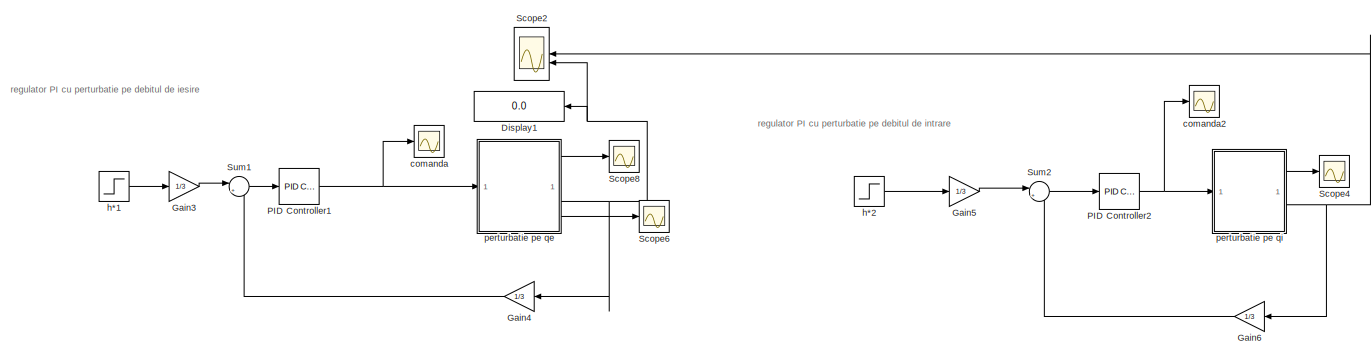
[diagram: root canvas - part 1/2, right side, full height]
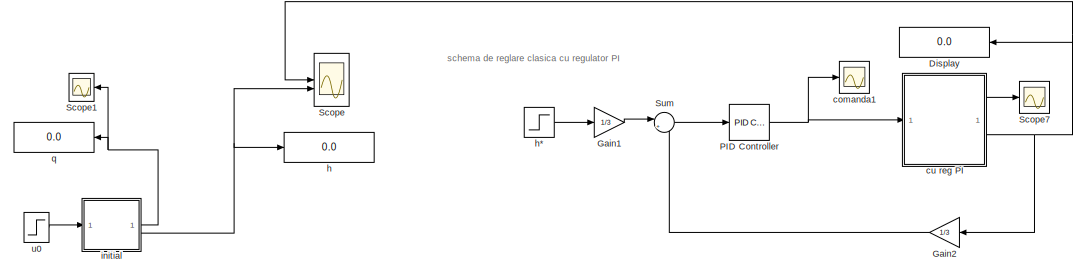
[diagram: root canvas - part 2/2, middle left region]
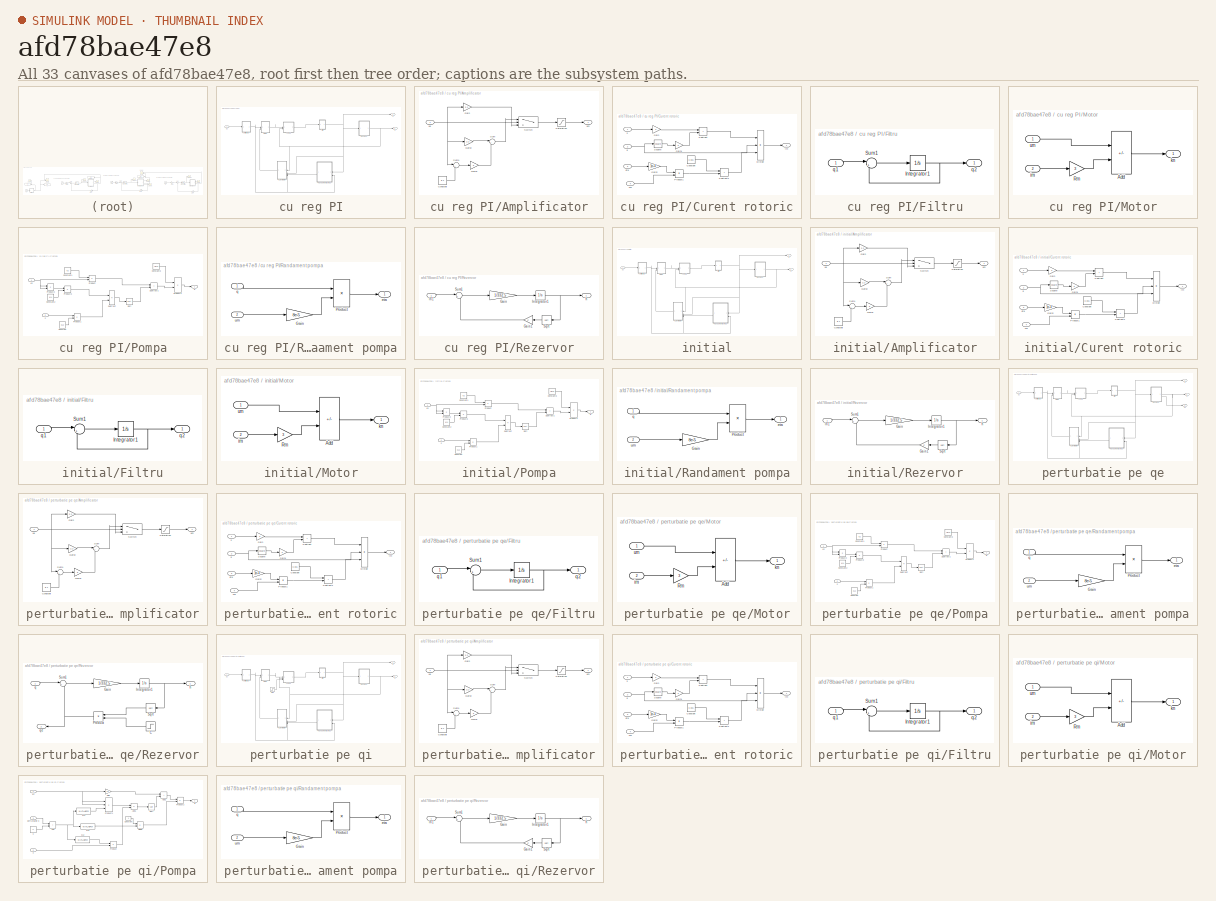
[diagram: thumbnail index - all 33 canvases of the model, root first then tree order]
MODEL slx_afd78bae47e8
KIND model
CONFIG AbsTol = auto
CONFIG EnableMultiTasking = off
CONFIG FixedStep = 0.01
CONFIG MaxStep = auto
CONFIG MinStep = auto
CONFIG RelTol = 1e-3
CONFIG SampleTimeConstraint = Unconstrained
CONFIG SolverName = FixedStepAuto
CONFIG StartTime = 0.0
CONFIG StopTime = 2000
BLOCK [Display] Display
  Decimation = 1
  NameLocation = top
BLOCK [Display] Display1
  Decimation = 1
  NameLocation = top
BLOCK [Gain] Gain1
  Gain = 1/3
BLOCK [Gain] Gain2
  Gain = 1/3
  NameLocation = top
BLOCK [Gain] Gain3
  Gain = 1/3
BLOCK [Gain] Gain4
  Gain = 1/3
  NameLocation = top
BLOCK [Gain] Gain5
  Gain = 1/3
BLOCK [Gain] Gain6
  Gain = 1/3
  NameLocation = top
BLOCK [Reference] PID Controller  REF=slpidlib/PID Controller
  LibrarySourceBlock = simulink/Continuous/PID Controller
  SourceBlock = slpidlib/PID Controller
  SourceType = PID 1dof
BLOCK [Reference] PID Controller1  REF=slpidlib/PID Controller
  LibrarySourceBlock = simulink/Continuous/PID Controller
  SourceBlock = slpidlib/PID Controller
  SourceType = PID 1dof
BLOCK [Reference] PID Controller2  REF=slpidlib/PID Controller
  LibrarySourceBlock = simulink/Continuous/PID Controller
  SourceBlock = slpidlib/PID Controller
  SourceType = PID 1dof
BLOCK [Scope] Scope
  Floating = off
  NumInputPorts = 2
  ScopeSpecificationString = Simulink.scopes.TimeScopeBlockCfg('CurrentConfiguration', extmgr.ConfigurationSet(extmgr.Configuration('Core','General UI',true),extmgr.Configuration('Core','Source UI',true),extmgr.Configuration('Sources','WiredSimulink',true,'DataLoggingVariableName','ScopeData1'),extmgr.Configuration('Visuals','Time Domain',true,'SerializedDisplays',{struct('MinYLimReal','13.48441','MaxYLimReal','18.34027','YLa...<+1519ch>
BLOCK [Scope] Scope1
  Floating = off
  NameLocation = top
  NumInputPorts = 1
  ScopeSpecificationString = Simulink.scopes.TimeScopeBlockCfg('CurrentConfiguration', extmgr.ConfigurationSet(extmgr.Configuration('Core','General UI',true),extmgr.Configuration('Core','Source UI',true),extmgr.Configuration('Sources','WiredSimulink',true,'DataLoggingVariableName','ScopeData2'),extmgr.Configuration('Visuals','Time Domain',true,'SerializedDisplays',{struct('MinYLimReal','19.95198','MaxYLimReal','30.13222','YLa...<+1734ch>
BLOCK [Scope] Scope2
  Floating = off
  NameLocation = top
  NumInputPorts = 2
  ScopeSpecificationString = Simulink.scopes.TimeScopeBlockCfg('CurrentConfiguration', extmgr.ConfigurationSet(extmgr.Configuration('Core','General UI',true),extmgr.Configuration('Core','Source UI',true),extmgr.Configuration('Sources','WiredSimulink',true,'DataLoggingVariableName','ScopeData9'),extmgr.Configuration('Visuals','Time Domain',true,'SerializedDisplays',{struct('MinYLimReal','13.48278','MaxYLimReal','18.35495','YLa...<+1797ch>
BLOCK [Scope] Scope4
  Floating = off
  NumInputPorts = 1
  ScopeSpecificationString = Simulink.scopes.TimeScopeBlockCfg('CurrentConfiguration', extmgr.ConfigurationSet(extmgr.Configuration('Core','General UI',true),extmgr.Configuration('Core','Source UI',true),extmgr.Configuration('Sources','WiredSimulink',true,'DataLoggingVariableName','ScopeData3'),extmgr.Configuration('Visuals','Time Domain',true),extmgr.Configuration('Tools','Plot Navigation',true),extmgr.Configuration('Tools',...<+40ch>
BLOCK [Scope] Scope6
  Floating = off
  NumInputPorts = 1
  ScopeSpecificationString = Simulink.scopes.TimeScopeBlockCfg('CurrentConfiguration', extmgr.ConfigurationSet(extmgr.Configuration('Core','General UI',true),extmgr.Configuration('Core','Source UI',true),extmgr.Configuration('Sources','WiredSimulink',true,'DataLoggingVariableName','ScopeData4'),extmgr.Configuration('Visuals','Time Domain',true,'SerializedDisplays',{struct('MinYLimReal','18.79179','MaxYLimReal','40.1821','YLab...<+1380ch>
BLOCK [Scope] Scope7
  Floating = off
  NumInputPorts = 1
  ScopeSpecificationString = Simulink.scopes.TimeScopeBlockCfg('CurrentConfiguration', extmgr.ConfigurationSet(extmgr.Configuration('Core','General UI',true),extmgr.Configuration('Core','Source UI',true),extmgr.Configuration('Sources','WiredSimulink',true,'DataLoggingVariableName','ScopeData5'),extmgr.Configuration('Visuals','Time Domain',true,'SerializedDisplays',{struct('MinYLimReal','-3.05506','MaxYLimReal','62.55719','YLa...<+1374ch>
BLOCK [Scope] Scope8
  Floating = off
  NumInputPorts = 1
  ScopeSpecificationString = Simulink.scopes.TimeScopeBlockCfg('CurrentConfiguration', extmgr.ConfigurationSet(extmgr.Configuration('Core','General UI',true),extmgr.Configuration('Core','Source UI',true),extmgr.Configuration('Sources','WiredSimulink',true,'DataLoggingVariableName','ScopeData6'),extmgr.Configuration('Visuals','Time Domain',true,'SerializedDisplays',{struct('MinYLimReal','17.57679','MaxYLimReal','51.50893','YLa...<+1698ch>
BLOCK [Sum] Sum
  Inputs = |+-
BLOCK [Sum] Sum1
  Inputs = |+-
BLOCK [Sum] Sum2
  Inputs = |+-
BLOCK [Scope] comanda
  Floating = off
  NumInputPorts = 1
  ScopeSpecificationString = Simulink.scopes.TimeScopeBlockCfg('CurrentConfiguration', extmgr.ConfigurationSet(extmgr.Configuration('Core','General UI',true),extmgr.Configuration('Core','Source UI',true),extmgr.Configuration('Sources','WiredSimulink',true,'DataLoggingVariableName','ScopeData7'),extmgr.Configuration('Visuals','Time Domain',true,'SerializedDisplays',{struct('MinYLimReal','4.71228','MaxYLimReal','6.58382','YLabe...<+1371ch>
BLOCK [Scope] comanda1
  Floating = off
  NumInputPorts = 1
  ScopeSpecificationString = Simulink.scopes.TimeScopeBlockCfg('CurrentConfiguration', extmgr.ConfigurationSet(extmgr.Configuration('Core','General UI',true),extmgr.Configuration('Core','Source UI',true),extmgr.Configuration('Sources','WiredSimulink',true,'DataLoggingVariableName','ScopeData8'),extmgr.Configuration('Visuals','Time Domain',true,'SerializedDisplays',{struct('MinYLimReal','4.07509','MaxYLimReal','7.51654','YLabe...<+1411ch>
BLOCK [Scope] comanda2
  Floating = off
  NumInputPorts = 1
  ScopeSpecificationString = Simulink.scopes.TimeScopeBlockCfg('CurrentConfiguration', extmgr.ConfigurationSet(extmgr.Configuration('Core','General UI',true),extmgr.Configuration('Core','Source UI',true),extmgr.Configuration('Sources','WiredSimulink',true),extmgr.Configuration('Visuals','Time Domain',true),extmgr.Configuration('Tools','Plot Navigation',true),extmgr.Configuration('Tools','Measurements',true)),'Version','2022b'...<+1ch>
BLOCK [SubSystem] cu reg PI
BLOCK [SubSystem] cu reg PI/Amplificator
BLOCK [Constant] cu reg PI/Amplificator/Constant
  Value = 8.1
BLOCK [Gain] cu reg PI/Amplificator/Gain
  Gain = 2.2
BLOCK [Gain] cu reg PI/Amplificator/Gain1
  Gain = 5
BLOCK [Gain] cu reg PI/Amplificator/Gain2
  Gain = 2.2
BLOCK [Saturate] cu reg PI/Amplificator/Saturation
  LowerLimit = 0
  UpperLimit = 22
BLOCK [Sum] cu reg PI/Amplificator/Sum
  Inputs = |++
BLOCK [Sum] cu reg PI/Amplificator/Sum1
  Inputs = |+-
BLOCK [Switch] cu reg PI/Amplificator/Switch
  Criteria = u2 > Threshold
  InputSameDT = off
  SaturateOnIntegerOverflow = off
  Threshold = 8.1
BLOCK [Inport] cu reg PI/Amplificator/ua
BLOCK [Outport] cu reg PI/Amplificator/um
BLOCK [SubSystem] cu reg PI/Curent rotoric
  NameLocation = top
BLOCK [Constant] cu reg PI/Curent rotoric/Constant
  Value = 0.001
BLOCK [Product] cu reg PI/Curent rotoric/Divide
  Inputs = **/
BLOCK [Gain] cu reg PI/Curent rotoric/Gain
  Gain = 2
BLOCK [Gain] cu reg PI/Curent rotoric/Gain1
  Gain = k
BLOCK [Gain] cu reg PI/Curent rotoric/Gain2
  Gain = 1e+4
BLOCK [Product] cu reg PI/Curent rotoric/Product1
BLOCK [Math] cu reg PI/Curent rotoric/Square
  Operator = square
BLOCK [Sum] cu reg PI/Curent rotoric/Subtract
  IconShape = rectangular
BLOCK [Sum] cu reg PI/Curent rotoric/Subtract1
  IconShape = rectangular
BLOCK [Inport] cu reg PI/Curent rotoric/eta
  Port = 3
BLOCK [Inport] cu reg PI/Curent rotoric/h
BLOCK [Outport] cu reg PI/Curent rotoric/im
BLOCK [Inport] cu reg PI/Curent rotoric/q
  Port = 2
BLOCK [Inport] cu reg PI/Curent rotoric/um
  Port = 4
BLOCK [SubSystem] cu reg PI/Filtru
BLOCK [Integrator] cu reg PI/Filtru/Integrator1
  InitialCondition = q0
BLOCK [Sum] cu reg PI/Filtru/Sum1
  Inputs = |+-
BLOCK [Inport] cu reg PI/Filtru/q1
BLOCK [Outport] cu reg PI/Filtru/q2
BLOCK [SubSystem] cu reg PI/Motor
BLOCK [Sum] cu reg PI/Motor/Add
  IconShape = rectangular
  Inputs = +-
BLOCK [Gain] cu reg PI/Motor/Rm
  Gain = 3
BLOCK [Inport] cu reg PI/Motor/im
  Port = 2
BLOCK [Outport] cu reg PI/Motor/kn
BLOCK [Inport] cu reg PI/Motor/um
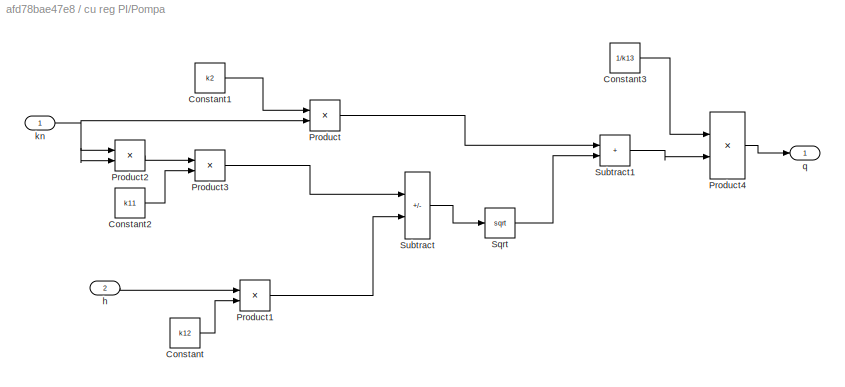
BLOCK [SubSystem] cu reg PI/Pompa
BLOCK [Constant] cu reg PI/Pompa/Constant
  Value = k12
BLOCK [Constant] cu reg PI/Pompa/Constant1
  Value = k2
BLOCK [Constant] cu reg PI/Pompa/Constant2
  Value = k11
BLOCK [Constant] cu reg PI/Pompa/Constant3
  Value = 1/k13
BLOCK [Product] cu reg PI/Pompa/Product
BLOCK [Product] cu reg PI/Pompa/Product1
BLOCK [Product] cu reg PI/Pompa/Product2
BLOCK [Product] cu reg PI/Pompa/Product3
BLOCK [Product] cu reg PI/Pompa/Product4
BLOCK [Sqrt] cu reg PI/Pompa/Sqrt
BLOCK [Sum] cu reg PI/Pompa/Subtract
  IconShape = rectangular
  Inputs = +-
BLOCK [Sum] cu reg PI/Pompa/Subtract1
  IconShape = rectangular
BLOCK [Inport] cu reg PI/Pompa/h
  Port = 2
BLOCK [Inport] cu reg PI/Pompa/kn
BLOCK [Outport] cu reg PI/Pompa/q
BLOCK [SubSystem] cu reg PI/Randament pompa
  NameLocation = top
BLOCK [Gain] cu reg PI/Randament pompa/Gain
  Gain = 8e-5
BLOCK [Product] cu reg PI/Randament pompa/Product
BLOCK [Outport] cu reg PI/Randament pompa/eta
BLOCK [Inport] cu reg PI/Randament pompa/q
BLOCK [Inport] cu reg PI/Randament pompa/um
  Port = 2
BLOCK [SubSystem] cu reg PI/Rezervor
BLOCK [Gain] cu reg PI/Rezervor/Gain
  Gain = 1/332.5
BLOCK [Gain] cu reg PI/Rezervor/Gain1
  Gain = C
  NameLocation = top
BLOCK [Integrator] cu reg PI/Rezervor/Integrator1
  InitialCondition = h0
BLOCK [Sqrt] cu reg PI/Rezervor/Sqrt
  NameLocation = top
BLOCK [Sum] cu reg PI/Rezervor/Sum1
  Inputs = |+-
BLOCK [Outport] cu reg PI/Rezervor/h
BLOCK [Inport] cu reg PI/Rezervor/ln1
BLOCK [Outport] cu reg PI/h
  Port = 2
BLOCK [Outport] cu reg PI/q
BLOCK [Inport] cu reg PI/uc
BLOCK [Display] h
  Decimation = 1
BLOCK [Step] h*
  After = h1
  Before = h0
  SampleTime = 0
  Time = 0
BLOCK [Step] h*1
  After = h1
  Before = h0
  SampleTime = 0
  Time = 0
BLOCK [Step] h*2
  After = h1
  Before = h0
  SampleTime = 0
  Time = 0
BLOCK [SubSystem] initial
BLOCK [SubSystem] initial/Amplificator
BLOCK [Constant] initial/Amplificator/Constant
  Value = 8.1
BLOCK [Gain] initial/Amplificator/Gain
  Gain = 2.2
BLOCK [Gain] initial/Amplificator/Gain1
  Gain = 5
BLOCK [Gain] initial/Amplificator/Gain2
  Gain = 2.2
BLOCK [Saturate] initial/Amplificator/Saturation
  LowerLimit = 0
  UpperLimit = 22
BLOCK [Sum] initial/Amplificator/Sum
  Inputs = |++
BLOCK [Sum] initial/Amplificator/Sum1
  Inputs = |+-
BLOCK [Switch] initial/Amplificator/Switch
  Criteria = u2 > Threshold
  InputSameDT = off
  SaturateOnIntegerOverflow = off
  Threshold = 8.1
BLOCK [Inport] initial/Amplificator/ua
BLOCK [Outport] initial/Amplificator/um
BLOCK [SubSystem] initial/Curent rotoric
  NameLocation = top
BLOCK [Constant] initial/Curent rotoric/Constant
  Value = 0.001
BLOCK [Product] initial/Curent rotoric/Divide
  Inputs = **/
BLOCK [Gain] initial/Curent rotoric/Gain
  Gain = 2
BLOCK [Gain] initial/Curent rotoric/Gain1
  Gain = k
BLOCK [Gain] initial/Curent rotoric/Gain2
  Gain = 1e+4
BLOCK [Product] initial/Curent rotoric/Product1
BLOCK [Math] initial/Curent rotoric/Square
  Operator = square
BLOCK [Sum] initial/Curent rotoric/Subtract
  IconShape = rectangular
BLOCK [Sum] initial/Curent rotoric/Subtract1
  IconShape = rectangular
BLOCK [Inport] initial/Curent rotoric/eta
  Port = 3
BLOCK [Inport] initial/Curent rotoric/h
BLOCK [Outport] initial/Curent rotoric/im
BLOCK [Inport] initial/Curent rotoric/q
  Port = 2
BLOCK [Inport] initial/Curent rotoric/um
  Port = 4
BLOCK [SubSystem] initial/Filtru
BLOCK [Integrator] initial/Filtru/Integrator1
  InitialCondition = q0
BLOCK [Sum] initial/Filtru/Sum1
  Inputs = |+-
BLOCK [Inport] initial/Filtru/q1
BLOCK [Outport] initial/Filtru/q2
BLOCK [SubSystem] initial/Motor
BLOCK [Sum] initial/Motor/Add
  IconShape = rectangular
  Inputs = +-
BLOCK [Gain] initial/Motor/Rm
  Gain = 3
BLOCK [Inport] initial/Motor/im
  Port = 2
BLOCK [Outport] initial/Motor/kn
BLOCK [Inport] initial/Motor/um
BLOCK [SubSystem] initial/Pompa
BLOCK [Constant] initial/Pompa/Constant
  Value = k12
BLOCK [Constant] initial/Pompa/Constant1
  Value = k2
BLOCK [Constant] initial/Pompa/Constant2
  Value = k11
BLOCK [Constant] initial/Pompa/Constant3
  Value = 1/k13
BLOCK [Product] initial/Pompa/Product
BLOCK [Product] initial/Pompa/Product1
BLOCK [Product] initial/Pompa/Product2
BLOCK [Product] initial/Pompa/Product3
BLOCK [Product] initial/Pompa/Product4
BLOCK [Sqrt] initial/Pompa/Sqrt
BLOCK [Sum] initial/Pompa/Subtract
  IconShape = rectangular
  Inputs = +-
BLOCK [Sum] initial/Pompa/Subtract1
  IconShape = rectangular
BLOCK [Inport] initial/Pompa/h
  Port = 2
BLOCK [Inport] initial/Pompa/kn
BLOCK [Outport] initial/Pompa/q
BLOCK [SubSystem] initial/Randament pompa
  NameLocation = top
BLOCK [Gain] initial/Randament pompa/Gain
  Gain = 8e-5
BLOCK [Product] initial/Randament pompa/Product
BLOCK [Outport] initial/Randament pompa/eta
BLOCK [Inport] initial/Randament pompa/q
BLOCK [Inport] initial/Randament pompa/um
  Port = 2
BLOCK [SubSystem] initial/Rezervor
BLOCK [Gain] initial/Rezervor/Gain
  Gain = 1/332.5
BLOCK [Gain] initial/Rezervor/Gain1
  Gain = C
  NameLocation = top
BLOCK [Integrator] initial/Rezervor/Integrator1
  InitialCondition = h0
BLOCK [Sqrt] initial/Rezervor/Sqrt
  NameLocation = top
BLOCK [Sum] initial/Rezervor/Sum1
  Inputs = |+-
BLOCK [Outport] initial/Rezervor/h
BLOCK [Inport] initial/Rezervor/ln1
BLOCK [Outport] initial/h
  Port = 2
BLOCK [Outport] initial/q
BLOCK [Inport] initial/uc
BLOCK [SubSystem] perturbatie pe qe
BLOCK [SubSystem] perturbatie pe qe/Amplificator
BLOCK [Constant] perturbatie pe qe/Amplificator/Constant
  Value = 8.1
BLOCK [Gain] perturbatie pe qe/Amplificator/Gain
  Gain = 2.2
BLOCK [Gain] perturbatie pe qe/Amplificator/Gain1
  Gain = 5
BLOCK [Gain] perturbatie pe qe/Amplificator/Gain2
  Gain = 2.2
BLOCK [Saturate] perturbatie pe qe/Amplificator/Saturation
  LowerLimit = 0
  UpperLimit = 22
BLOCK [Sum] perturbatie pe qe/Amplificator/Sum
  Inputs = |++
BLOCK [Sum] perturbatie pe qe/Amplificator/Sum1
  Inputs = |+-
BLOCK [Switch] perturbatie pe qe/Amplificator/Switch
  Criteria = u2 > Threshold
  InputSameDT = off
  SaturateOnIntegerOverflow = off
  Threshold = 8.1
BLOCK [Inport] perturbatie pe qe/Amplificator/ua
BLOCK [Outport] perturbatie pe qe/Amplificator/um
BLOCK [SubSystem] perturbatie pe qe/Curent rotoric
  NameLocation = top
BLOCK [Constant] perturbatie pe qe/Curent rotoric/Constant
  Value = 0.001
BLOCK [Product] perturbatie pe qe/Curent rotoric/Divide
  Inputs = **/
BLOCK [Gain] perturbatie pe qe/Curent rotoric/Gain
  Gain = 2
BLOCK [Gain] perturbatie pe qe/Curent rotoric/Gain1
  Gain = k
BLOCK [Gain] perturbatie pe qe/Curent rotoric/Gain2
  Gain = 1e+4
BLOCK [Product] perturbatie pe qe/Curent rotoric/Product1
BLOCK [Math] perturbatie pe qe/Curent rotoric/Square
  Operator = square
BLOCK [Sum] perturbatie pe qe/Curent rotoric/Subtract
  IconShape = rectangular
BLOCK [Sum] perturbatie pe qe/Curent rotoric/Subtract1
  IconShape = rectangular
BLOCK [Inport] perturbatie pe qe/Curent rotoric/eta
  Port = 3
BLOCK [Inport] perturbatie pe qe/Curent rotoric/h
BLOCK [Outport] perturbatie pe qe/Curent rotoric/im
BLOCK [Inport] perturbatie pe qe/Curent rotoric/q
  Port = 2
BLOCK [Inport] perturbatie pe qe/Curent rotoric/um
  Port = 4
BLOCK [SubSystem] perturbatie pe qe/Filtru
BLOCK [Integrator] perturbatie pe qe/Filtru/Integrator1
  InitialCondition = q0
BLOCK [Sum] perturbatie pe qe/Filtru/Sum1
  Inputs = |+-
BLOCK [Inport] perturbatie pe qe/Filtru/q1
BLOCK [Outport] perturbatie pe qe/Filtru/q2
BLOCK [SubSystem] perturbatie pe qe/Motor
BLOCK [Sum] perturbatie pe qe/Motor/Add
  IconShape = rectangular
  Inputs = +-
BLOCK [Gain] perturbatie pe qe/Motor/Rm
  Gain = 3
BLOCK [Inport] perturbatie pe qe/Motor/im
  Port = 2
BLOCK [Outport] perturbatie pe qe/Motor/kn
BLOCK [Inport] perturbatie pe qe/Motor/um
BLOCK [SubSystem] perturbatie pe qe/Pompa
BLOCK [Constant] perturbatie pe qe/Pompa/Constant
  Value = k12
BLOCK [Constant] perturbatie pe qe/Pompa/Constant1
  Value = k2
BLOCK [Constant] perturbatie pe qe/Pompa/Constant2
  Value = k11
BLOCK [Constant] perturbatie pe qe/Pompa/Constant3
  Value = 1/k13
BLOCK [Product] perturbatie pe qe/Pompa/Product
BLOCK [Product] perturbatie pe qe/Pompa/Product1
BLOCK [Product] perturbatie pe qe/Pompa/Product2
BLOCK [Product] perturbatie pe qe/Pompa/Product3
BLOCK [Product] perturbatie pe qe/Pompa/Product4
BLOCK [Sqrt] perturbatie pe qe/Pompa/Sqrt
BLOCK [Sum] perturbatie pe qe/Pompa/Subtract
  IconShape = rectangular
  Inputs = +-
BLOCK [Sum] perturbatie pe qe/Pompa/Subtract1
  IconShape = rectangular
BLOCK [Inport] perturbatie pe qe/Pompa/h
  Port = 2
BLOCK [Inport] perturbatie pe qe/Pompa/kn
BLOCK [Outport] perturbatie pe qe/Pompa/q
BLOCK [SubSystem] perturbatie pe qe/Randament pompa
  NameLocation = top
BLOCK [Gain] perturbatie pe qe/Randament pompa/Gain
  Gain = 8e-5
BLOCK [Product] perturbatie pe qe/Randament pompa/Product
BLOCK [Outport] perturbatie pe qe/Randament pompa/eta
BLOCK [Inport] perturbatie pe qe/Randament pompa/q
BLOCK [Inport] perturbatie pe qe/Randament pompa/um
  Port = 2
BLOCK [SubSystem] perturbatie pe qe/Rezervor
BLOCK [Step] perturbatie pe qe/Rezervor/C
  After = 9
  Before = 5.6
  NameLocation = top
  SampleTime = 0
  Time = 250
BLOCK [Gain] perturbatie pe qe/Rezervor/Gain
  Gain = 1/332.5
BLOCK [Integrator] perturbatie pe qe/Rezervor/Integrator1
  InitialCondition = h0
BLOCK [Product] perturbatie pe qe/Rezervor/Product
  NameLocation = top
BLOCK [Sqrt] perturbatie pe qe/Rezervor/Sqrt
  NameLocation = top
BLOCK [Sum] perturbatie pe qe/Rezervor/Sum1
  Inputs = |+-
BLOCK [Outport] perturbatie pe qe/Rezervor/h
BLOCK [Inport] perturbatie pe qe/Rezervor/q
BLOCK [Outport] perturbatie pe qe/Rezervor/qe
  NameLocation = top
  Port = 2
BLOCK [Outport] perturbatie pe qe/h
  Port = 2
BLOCK [Outport] perturbatie pe qe/q
BLOCK [Outport] perturbatie pe qe/qe
  Port = 3
BLOCK [Inport] perturbatie pe qe/uc
BLOCK [SubSystem] perturbatie pe qi
BLOCK [SubSystem] perturbatie pe qi/Amplificator
BLOCK [Constant] perturbatie pe qi/Amplificator/Constant
  Value = 8.1
BLOCK [Gain] perturbatie pe qi/Amplificator/Gain
  Gain = 2.2
BLOCK [Gain] perturbatie pe qi/Amplificator/Gain1
  Gain = 5
BLOCK [Gain] perturbatie pe qi/Amplificator/Gain2
  Gain = 2.2
BLOCK [Saturate] perturbatie pe qi/Amplificator/Saturation
  LowerLimit = 0
  UpperLimit = 22
BLOCK [Sum] perturbatie pe qi/Amplificator/Sum
  Inputs = |++
BLOCK [Sum] perturbatie pe qi/Amplificator/Sum1
  Inputs = |+-
BLOCK [Switch] perturbatie pe qi/Amplificator/Switch
  Criteria = u2 > Threshold
  InputSameDT = off
  SaturateOnIntegerOverflow = off
  Threshold = 8.1
BLOCK [Inport] perturbatie pe qi/Amplificator/ua
BLOCK [Outport] perturbatie pe qi/Amplificator/um
BLOCK [SubSystem] perturbatie pe qi/Curent rotoric
  NameLocation = top
BLOCK [Constant] perturbatie pe qi/Curent rotoric/Constant
  Value = 0.001
BLOCK [Product] perturbatie pe qi/Curent rotoric/Divide
  Inputs = **/
BLOCK [Gain] perturbatie pe qi/Curent rotoric/Gain
  Gain = 2
BLOCK [Gain] perturbatie pe qi/Curent rotoric/Gain1
  Gain = k
BLOCK [Gain] perturbatie pe qi/Curent rotoric/Gain2
  Gain = 1e+4
BLOCK [Product] perturbatie pe qi/Curent rotoric/Product1
BLOCK [Math] perturbatie pe qi/Curent rotoric/Square
  Operator = square
BLOCK [Sum] perturbatie pe qi/Curent rotoric/Subtract
  IconShape = rectangular
BLOCK [Sum] perturbatie pe qi/Curent rotoric/Subtract1
  IconShape = rectangular
BLOCK [Inport] perturbatie pe qi/Curent rotoric/eta
  Port = 3
BLOCK [Inport] perturbatie pe qi/Curent rotoric/h
BLOCK [Outport] perturbatie pe qi/Curent rotoric/im
BLOCK [Inport] perturbatie pe qi/Curent rotoric/q
  Port = 2
BLOCK [Inport] perturbatie pe qi/Curent rotoric/um
  Port = 4
BLOCK [SubSystem] perturbatie pe qi/Filtru
BLOCK [Integrator] perturbatie pe qi/Filtru/Integrator1
  InitialCondition = q0
BLOCK [Sum] perturbatie pe qi/Filtru/Sum1
  Inputs = |+-
BLOCK [Inport] perturbatie pe qi/Filtru/q1
BLOCK [Outport] perturbatie pe qi/Filtru/q2
BLOCK [SubSystem] perturbatie pe qi/Motor
BLOCK [Sum] perturbatie pe qi/Motor/Add
  IconShape = rectangular
  Inputs = +-
BLOCK [Gain] perturbatie pe qi/Motor/Rm
  Gain = 3
BLOCK [Inport] perturbatie pe qi/Motor/im
  Port = 2
BLOCK [Outport] perturbatie pe qi/Motor/kn
BLOCK [Inport] perturbatie pe qi/Motor/um
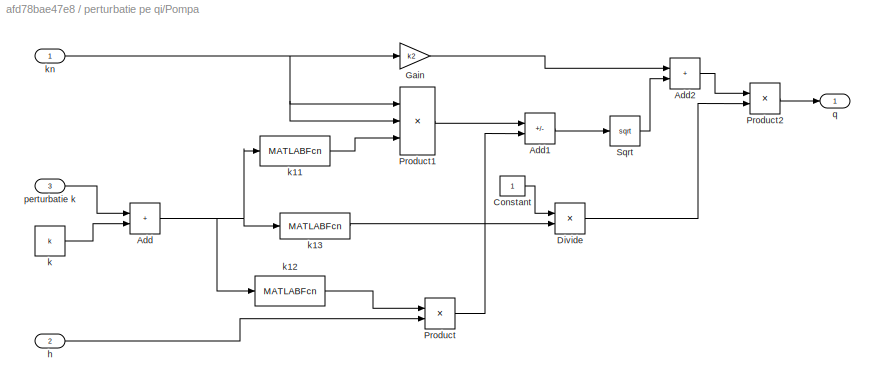
BLOCK [SubSystem] perturbatie pe qi/Pompa
BLOCK [Sum] perturbatie pe qi/Pompa/Add
  IconShape = rectangular
BLOCK [Sum] perturbatie pe qi/Pompa/Add1
  IconShape = rectangular
  Inputs = +-
BLOCK [Sum] perturbatie pe qi/Pompa/Add2
  IconShape = rectangular
BLOCK [Constant] perturbatie pe qi/Pompa/Constant
BLOCK [Product] perturbatie pe qi/Pompa/Divide
  Inputs = */
BLOCK [Gain] perturbatie pe qi/Pompa/Gain
  Gain = k2
BLOCK [Product] perturbatie pe qi/Pompa/Product
BLOCK [Product] perturbatie pe qi/Pompa/Product1
  Inputs = 3
BLOCK [Product] perturbatie pe qi/Pompa/Product2
BLOCK [Sqrt] perturbatie pe qi/Pompa/Sqrt
BLOCK [Inport] perturbatie pe qi/Pompa/h
  Port = 2
BLOCK [Constant] perturbatie pe qi/Pompa/k
  Value = k
BLOCK [MATLABFcn] perturbatie pe qi/Pompa/k11
  MATLABFcn = k2*k2+4*(u-k3)*k1;
BLOCK [MATLABFcn] perturbatie pe qi/Pompa/k12
  MATLABFcn = 8*(u-k3)
BLOCK [MATLABFcn] perturbatie pe qi/Pompa/k13
  MATLABFcn = 2*(u-k3)
BLOCK [Inport] perturbatie pe qi/Pompa/kn
BLOCK [Inport] perturbatie pe qi/Pompa/perturbatie k
  Port = 3
BLOCK [Outport] perturbatie pe qi/Pompa/q
BLOCK [SubSystem] perturbatie pe qi/Randament pompa
  NameLocation = top
BLOCK [Gain] perturbatie pe qi/Randament pompa/Gain
  Gain = 8e-5
BLOCK [Product] perturbatie pe qi/Randament pompa/Product
BLOCK [Outport] perturbatie pe qi/Randament pompa/eta
BLOCK [Inport] perturbatie pe qi/Randament pompa/q
BLOCK [Inport] perturbatie pe qi/Randament pompa/um
  Port = 2
BLOCK [SubSystem] perturbatie pe qi/Rezervor
BLOCK [Gain] perturbatie pe qi/Rezervor/Gain
  Gain = 1/332.5
BLOCK [Gain] perturbatie pe qi/Rezervor/Gain1
  Gain = C
  NameLocation = top
BLOCK [Integrator] perturbatie pe qi/Rezervor/Integrator1
  InitialCondition = h0
BLOCK [Sqrt] perturbatie pe qi/Rezervor/Sqrt
  NameLocation = top
BLOCK [Sum] perturbatie pe qi/Rezervor/Sum1
  Inputs = |+-
BLOCK [Outport] perturbatie pe qi/Rezervor/h
BLOCK [Inport] perturbatie pe qi/Rezervor/ln1
BLOCK [Step] perturbatie pe qi/Step
  After = 0.03
  SampleTime = 0
  Time = 250
BLOCK [Outport] perturbatie pe qi/h
  Port = 2
BLOCK [Outport] perturbatie pe qi/q
BLOCK [Inport] perturbatie pe qi/uc
BLOCK [Display] q
  Decimation = 1
  NameLocation = top
BLOCK [Step] u0
  After = 4.9
  Before = 4.4
  SampleTime = 0
  Time = 0
ANNOTATION (root): regulator PI cu perturbatie pe debitul de iesire
ANNOTATION (root): regulator PI cu perturbatie pe debitul de intrare
ANNOTATION (root): schema de reglare clasica cu regulator PI
LINE Gain1:1 -> Sum:1
LINE Gain2:1 -> Sum:2
LINE Gain3:1 -> Sum1:1
LINE Gain4:1 -> Sum1:2
LINE Gain5:1 -> Sum2:1
LINE Gain6:1 -> Sum2:2
NET PID Controller1:1 -> comanda:1, perturbatie pe qe:1
NET PID Controller2:1 -> comanda2:1, perturbatie pe qi:1
NET PID Controller:1 -> comanda1:1, cu reg PI:1
LINE Sum1:1 -> PID Controller1:1
LINE Sum2:1 -> PID Controller2:1
LINE Sum:1 -> PID Controller:1
LINE cu reg PI/Amplificator/Constant:1 -> cu reg PI/Amplificator/Sum1:2
LINE cu reg PI/Amplificator/Gain1:1 -> cu reg PI/Amplificator/Sum:2
LINE cu reg PI/Amplificator/Gain2:1 -> cu reg PI/Amplificator/Sum:1
LINE cu reg PI/Amplificator/Gain:1 -> cu reg PI/Amplificator/Switch:3
LINE cu reg PI/Amplificator/Saturation:1 -> cu reg PI/Amplificator/um:1
LINE cu reg PI/Amplificator/Sum1:1 -> cu reg PI/Amplificator/Gain1:1
LINE cu reg PI/Amplificator/Sum:1 -> cu reg PI/Amplificator/Switch:1
LINE cu reg PI/Amplificator/Switch:1 -> cu reg PI/Amplificator/Saturation:1
NET cu reg PI/Amplificator/ua:1 -> cu reg PI/Amplificator/Gain2:1, cu reg PI/Amplificator/Gain:1, cu reg PI/Amplificator/Sum1:1, cu reg PI/Amplificator/Switch:2
NET cu reg PI/Amplificator:1 -> cu reg PI/Curent rotoric:4, cu reg PI/Motor:1, cu reg PI/Randament pompa:2
LINE cu reg PI/Curent rotoric/Constant:1 -> cu reg PI/Curent rotoric/Subtract1:1
LINE cu reg PI/Curent rotoric/Divide:1 -> cu reg PI/Curent rotoric/im:1
LINE cu reg PI/Curent rotoric/Gain1:1 -> cu reg PI/Curent rotoric/Subtract:2
LINE cu reg PI/Curent rotoric/Gain2:1 -> cu reg PI/Curent rotoric/Product1:1
LINE cu reg PI/Curent rotoric/Gain:1 -> cu reg PI/Curent rotoric/Subtract:1
LINE cu reg PI/Curent rotoric/Product1:1 -> cu reg PI/Curent rotoric/Subtract1:2
LINE cu reg PI/Curent rotoric/Square:1 -> cu reg PI/Curent rotoric/Gain1:1
LINE cu reg PI/Curent rotoric/Subtract1:1 -> cu reg PI/Curent rotoric/Divide:3
LINE cu reg PI/Curent rotoric/Subtract:1 -> cu reg PI/Curent rotoric/Divide:1
LINE cu reg PI/Curent rotoric/eta:1 -> cu reg PI/Curent rotoric/Gain2:1
LINE cu reg PI/Curent rotoric/h:1 -> cu reg PI/Curent rotoric/Gain:1
NET cu reg PI/Curent rotoric/q:1 -> cu reg PI/Curent rotoric/Divide:2, cu reg PI/Curent rotoric/Square:1
LINE cu reg PI/Curent rotoric/um:1 -> cu reg PI/Curent rotoric/Product1:2
LINE cu reg PI/Curent rotoric:1 -> cu reg PI/Motor:2
NET cu reg PI/Filtru/Integrator1:1 -> cu reg PI/Filtru/Sum1:2, cu reg PI/Filtru/q2:1
LINE cu reg PI/Filtru/Sum1:1 -> cu reg PI/Filtru/Integrator1:1
LINE cu reg PI/Filtru/q1:1 -> cu reg PI/Filtru/Sum1:1
NET cu reg PI/Filtru:1 -> cu reg PI/Curent rotoric:2, cu reg PI/Randament pompa:1, cu reg PI/Rezervor:1, cu reg PI/q:1
LINE cu reg PI/Motor/Add:1 -> cu reg PI/Motor/kn:1
LINE cu reg PI/Motor/Rm:1 -> cu reg PI/Motor/Add:2
LINE cu reg PI/Motor/im:1 -> cu reg PI/Motor/Rm:1
LINE cu reg PI/Motor/um:1 -> cu reg PI/Motor/Add:1
LINE cu reg PI/Motor:1 -> cu reg PI/Pompa:1
LINE cu reg PI/Pompa/Constant1:1 -> cu reg PI/Pompa/Product:1
LINE cu reg PI/Pompa/Constant2:1 -> cu reg PI/Pompa/Product3:2
LINE cu reg PI/Pompa/Constant3:1 -> cu reg PI/Pompa/Product4:1
LINE cu reg PI/Pompa/Constant:1 -> cu reg PI/Pompa/Product1:2
LINE cu reg PI/Pompa/Product1:1 -> cu reg PI/Pompa/Subtract:2
LINE cu reg PI/Pompa/Product2:1 -> cu reg PI/Pompa/Product3:1
LINE cu reg PI/Pompa/Product3:1 -> cu reg PI/Pompa/Subtract:1
LINE cu reg PI/Pompa/Product4:1 -> cu reg PI/Pompa/q:1
LINE cu reg PI/Pompa/Product:1 -> cu reg PI/Pompa/Subtract1:1
LINE cu reg PI/Pompa/Sqrt:1 -> cu reg PI/Pompa/Subtract1:2
LINE cu reg PI/Pompa/Subtract1:1 -> cu reg PI/Pompa/Product4:2
LINE cu reg PI/Pompa/Subtract:1 -> cu reg PI/Pompa/Sqrt:1
LINE cu reg PI/Pompa/h:1 -> cu reg PI/Pompa/Product1:1
NET cu reg PI/Pompa/kn:1 -> cu reg PI/Pompa/Product2:1, cu reg PI/Pompa/Product2:2, cu reg PI/Pompa/Product:2
LINE cu reg PI/Pompa:1 -> cu reg PI/Filtru:1
LINE cu reg PI/Randament pompa/Gain:1 -> cu reg PI/Randament pompa/Product:2
LINE cu reg PI/Randament pompa/Product:1 -> cu reg PI/Randament pompa/eta:1
LINE cu reg PI/Randament pompa/q:1 -> cu reg PI/Randament pompa/Product:1
LINE cu reg PI/Randament pompa/um:1 -> cu reg PI/Randament pompa/Gain:1
LINE cu reg PI/Randament pompa:1 -> cu reg PI/Curent rotoric:3
LINE cu reg PI/Rezervor/Gain1:1 -> cu reg PI/Rezervor/Sum1:2
LINE cu reg PI/Rezervor/Gain:1 -> cu reg PI/Rezervor/Integrator1:1
NET cu reg PI/Rezervor/Integrator1:1 -> cu reg PI/Rezervor/Sqrt:1, cu reg PI/Rezervor/h:1
LINE cu reg PI/Rezervor/Sqrt:1 -> cu reg PI/Rezervor/Gain1:1
LINE cu reg PI/Rezervor/Sum1:1 -> cu reg PI/Rezervor/Gain:1
LINE cu reg PI/Rezervor/ln1:1 -> cu reg PI/Rezervor/Sum1:1
NET cu reg PI/Rezervor:1 -> cu reg PI/Curent rotoric:1, cu reg PI/Pompa:2, cu reg PI/h:1
LINE cu reg PI/uc:1 -> cu reg PI/Amplificator:1
LINE cu reg PI:1 -> Scope7:1
NET cu reg PI:2 -> Display:1, Gain2:1, Scope:1
LINE h*1:1 -> Gain3:1
LINE h*2:1 -> Gain5:1
LINE h*:1 -> Gain1:1
LINE initial/Amplificator/Constant:1 -> initial/Amplificator/Sum1:2
LINE initial/Amplificator/Gain1:1 -> initial/Amplificator/Sum:2
LINE initial/Amplificator/Gain2:1 -> initial/Amplificator/Sum:1
LINE initial/Amplificator/Gain:1 -> initial/Amplificator/Switch:3
LINE initial/Amplificator/Saturation:1 -> initial/Amplificator/um:1
LINE initial/Amplificator/Sum1:1 -> initial/Amplificator/Gain1:1
LINE initial/Amplificator/Sum:1 -> initial/Amplificator/Switch:1
LINE initial/Amplificator/Switch:1 -> initial/Amplificator/Saturation:1
NET initial/Amplificator/ua:1 -> initial/Amplificator/Gain2:1, initial/Amplificator/Gain:1, initial/Amplificator/Sum1:1, initial/Amplificator/Switch:2
NET initial/Amplificator:1 -> initial/Curent rotoric:4, initial/Motor:1, initial/Randament pompa:2
LINE initial/Curent rotoric/Constant:1 -> initial/Curent rotoric/Subtract1:1
LINE initial/Curent rotoric/Divide:1 -> initial/Curent rotoric/im:1
LINE initial/Curent rotoric/Gain1:1 -> initial/Curent rotoric/Subtract:2
LINE initial/Curent rotoric/Gain2:1 -> initial/Curent rotoric/Product1:1
LINE initial/Curent rotoric/Gain:1 -> initial/Curent rotoric/Subtract:1
LINE initial/Curent rotoric/Product1:1 -> initial/Curent rotoric/Subtract1:2
LINE initial/Curent rotoric/Square:1 -> initial/Curent rotoric/Gain1:1
LINE initial/Curent rotoric/Subtract1:1 -> initial/Curent rotoric/Divide:3
LINE initial/Curent rotoric/Subtract:1 -> initial/Curent rotoric/Divide:1
LINE initial/Curent rotoric/eta:1 -> initial/Curent rotoric/Gain2:1
LINE initial/Curent rotoric/h:1 -> initial/Curent rotoric/Gain:1
NET initial/Curent rotoric/q:1 -> initial/Curent rotoric/Divide:2, initial/Curent rotoric/Square:1
LINE initial/Curent rotoric/um:1 -> initial/Curent rotoric/Product1:2
LINE initial/Curent rotoric:1 -> initial/Motor:2
NET initial/Filtru/Integrator1:1 -> initial/Filtru/Sum1:2, initial/Filtru/q2:1
LINE initial/Filtru/Sum1:1 -> initial/Filtru/Integrator1:1
LINE initial/Filtru/q1:1 -> initial/Filtru/Sum1:1
NET initial/Filtru:1 -> initial/Curent rotoric:2, initial/Randament pompa:1, initial/Rezervor:1, initial/q:1
LINE initial/Motor/Add:1 -> initial/Motor/kn:1
LINE initial/Motor/Rm:1 -> initial/Motor/Add:2
LINE initial/Motor/im:1 -> initial/Motor/Rm:1
LINE initial/Motor/um:1 -> initial/Motor/Add:1
LINE initial/Motor:1 -> initial/Pompa:1
LINE initial/Pompa/Constant1:1 -> initial/Pompa/Product:1
LINE initial/Pompa/Constant2:1 -> initial/Pompa/Product3:2
LINE initial/Pompa/Constant3:1 -> initial/Pompa/Product4:1
LINE initial/Pompa/Constant:1 -> initial/Pompa/Product1:2
LINE initial/Pompa/Product1:1 -> initial/Pompa/Subtract:2
LINE initial/Pompa/Product2:1 -> initial/Pompa/Product3:1
LINE initial/Pompa/Product3:1 -> initial/Pompa/Subtract:1
LINE initial/Pompa/Product4:1 -> initial/Pompa/q:1
LINE initial/Pompa/Product:1 -> initial/Pompa/Subtract1:1
LINE initial/Pompa/Sqrt:1 -> initial/Pompa/Subtract1:2
LINE initial/Pompa/Subtract1:1 -> initial/Pompa/Product4:2
LINE initial/Pompa/Subtract:1 -> initial/Pompa/Sqrt:1
LINE initial/Pompa/h:1 -> initial/Pompa/Product1:1
NET initial/Pompa/kn:1 -> initial/Pompa/Product2:1, initial/Pompa/Product2:2, initial/Pompa/Product:2
LINE initial/Pompa:1 -> initial/Filtru:1
LINE initial/Randament pompa/Gain:1 -> initial/Randament pompa/Product:2
LINE initial/Randament pompa/Product:1 -> initial/Randament pompa/eta:1
LINE initial/Randament pompa/q:1 -> initial/Randament pompa/Product:1
LINE initial/Randament pompa/um:1 -> initial/Randament pompa/Gain:1
LINE initial/Randament pompa:1 -> initial/Curent rotoric:3
LINE initial/Rezervor/Gain1:1 -> initial/Rezervor/Sum1:2
LINE initial/Rezervor/Gain:1 -> initial/Rezervor/Integrator1:1
NET initial/Rezervor/Integrator1:1 -> initial/Rezervor/Sqrt:1, initial/Rezervor/h:1
LINE initial/Rezervor/Sqrt:1 -> initial/Rezervor/Gain1:1
LINE initial/Rezervor/Sum1:1 -> initial/Rezervor/Gain:1
LINE initial/Rezervor/ln1:1 -> initial/Rezervor/Sum1:1
NET initial/Rezervor:1 -> initial/Curent rotoric:1, initial/Pompa:2, initial/h:1
LINE initial/uc:1 -> initial/Amplificator:1
NET initial:1 -> Scope1:1, q:1
NET initial:2 -> Scope:2, h:1
LINE perturbatie pe qe/Amplificator/Constant:1 -> perturbatie pe qe/Amplificator/Sum1:2
LINE perturbatie pe qe/Amplificator/Gain1:1 -> perturbatie pe qe/Amplificator/Sum:2
LINE perturbatie pe qe/Amplificator/Gain2:1 -> perturbatie pe qe/Amplificator/Sum:1
LINE perturbatie pe qe/Amplificator/Gain:1 -> perturbatie pe qe/Amplificator/Switch:3
LINE perturbatie pe qe/Amplificator/Saturation:1 -> perturbatie pe qe/Amplificator/um:1
LINE perturbatie pe qe/Amplificator/Sum1:1 -> perturbatie pe qe/Amplificator/Gain1:1
LINE perturbatie pe qe/Amplificator/Sum:1 -> perturbatie pe qe/Amplificator/Switch:1
LINE perturbatie pe qe/Amplificator/Switch:1 -> perturbatie pe qe/Amplificator/Saturation:1
NET perturbatie pe qe/Amplificator/ua:1 -> perturbatie pe qe/Amplificator/Gain2:1, perturbatie pe qe/Amplificator/Gain:1, perturbatie pe qe/Amplificator/Sum1:1, perturbatie pe qe/Amplificator/Switch:2
NET perturbatie pe qe/Amplificator:1 -> perturbatie pe qe/Curent rotoric:4, perturbatie pe qe/Motor:1, perturbatie pe qe/Randament pompa:2
LINE perturbatie pe qe/Curent rotoric/Constant:1 -> perturbatie pe qe/Curent rotoric/Subtract1:1
LINE perturbatie pe qe/Curent rotoric/Divide:1 -> perturbatie pe qe/Curent rotoric/im:1
LINE perturbatie pe qe/Curent rotoric/Gain1:1 -> perturbatie pe qe/Curent rotoric/Subtract:2
LINE perturbatie pe qe/Curent rotoric/Gain2:1 -> perturbatie pe qe/Curent rotoric/Product1:1
LINE perturbatie pe qe/Curent rotoric/Gain:1 -> perturbatie pe qe/Curent rotoric/Subtract:1
LINE perturbatie pe qe/Curent rotoric/Product1:1 -> perturbatie pe qe/Curent rotoric/Subtract1:2
LINE perturbatie pe qe/Curent rotoric/Square:1 -> perturbatie pe qe/Curent rotoric/Gain1:1
LINE perturbatie pe qe/Curent rotoric/Subtract1:1 -> perturbatie pe qe/Curent rotoric/Divide:3
LINE perturbatie pe qe/Curent rotoric/Subtract:1 -> perturbatie pe qe/Curent rotoric/Divide:1
LINE perturbatie pe qe/Curent rotoric/eta:1 -> perturbatie pe qe/Curent rotoric/Gain2:1
LINE perturbatie pe qe/Curent rotoric/h:1 -> perturbatie pe qe/Curent rotoric/Gain:1
NET perturbatie pe qe/Curent rotoric/q:1 -> perturbatie pe qe/Curent rotoric/Divide:2, perturbatie pe qe/Curent rotoric/Square:1
LINE perturbatie pe qe/Curent rotoric/um:1 -> perturbatie pe qe/Curent rotoric/Product1:2
LINE perturbatie pe qe/Curent rotoric:1 -> perturbatie pe qe/Motor:2
NET perturbatie pe qe/Filtru/Integrator1:1 -> perturbatie pe qe/Filtru/Sum1:2, perturbatie pe qe/Filtru/q2:1
LINE perturbatie pe qe/Filtru/Sum1:1 -> perturbatie pe qe/Filtru/Integrator1:1
LINE perturbatie pe qe/Filtru/q1:1 -> perturbatie pe qe/Filtru/Sum1:1
NET perturbatie pe qe/Filtru:1 -> perturbatie pe qe/Curent rotoric:2, perturbatie pe qe/Randament pompa:1, perturbatie pe qe/Rezervor:1, perturbatie pe qe/q:1
LINE perturbatie pe qe/Motor/Add:1 -> perturbatie pe qe/Motor/kn:1
LINE perturbatie pe qe/Motor/Rm:1 -> perturbatie pe qe/Motor/Add:2
LINE perturbatie pe qe/Motor/im:1 -> perturbatie pe qe/Motor/Rm:1
LINE perturbatie pe qe/Motor/um:1 -> perturbatie pe qe/Motor/Add:1
LINE perturbatie pe qe/Motor:1 -> perturbatie pe qe/Pompa:1
LINE perturbatie pe qe/Pompa/Constant1:1 -> perturbatie pe qe/Pompa/Product:1
LINE perturbatie pe qe/Pompa/Constant2:1 -> perturbatie pe qe/Pompa/Product3:2
LINE perturbatie pe qe/Pompa/Constant3:1 -> perturbatie pe qe/Pompa/Product4:1
LINE perturbatie pe qe/Pompa/Constant:1 -> perturbatie pe qe/Pompa/Product1:2
LINE perturbatie pe qe/Pompa/Product1:1 -> perturbatie pe qe/Pompa/Subtract:2
LINE perturbatie pe qe/Pompa/Product2:1 -> perturbatie pe qe/Pompa/Product3:1
LINE perturbatie pe qe/Pompa/Product3:1 -> perturbatie pe qe/Pompa/Subtract:1
LINE perturbatie pe qe/Pompa/Product4:1 -> perturbatie pe qe/Pompa/q:1
LINE perturbatie pe qe/Pompa/Product:1 -> perturbatie pe qe/Pompa/Subtract1:1
LINE perturbatie pe qe/Pompa/Sqrt:1 -> perturbatie pe qe/Pompa/Subtract1:2
LINE perturbatie pe qe/Pompa/Subtract1:1 -> perturbatie pe qe/Pompa/Product4:2
LINE perturbatie pe qe/Pompa/Subtract:1 -> perturbatie pe qe/Pompa/Sqrt:1
LINE perturbatie pe qe/Pompa/h:1 -> perturbatie pe qe/Pompa/Product1:1
NET perturbatie pe qe/Pompa/kn:1 -> perturbatie pe qe/Pompa/Product2:1, perturbatie pe qe/Pompa/Product2:2, perturbatie pe qe/Pompa/Product:2
LINE perturbatie pe qe/Pompa:1 -> perturbatie pe qe/Filtru:1
LINE perturbatie pe qe/Randament pompa/Gain:1 -> perturbatie pe qe/Randament pompa/Product:2
LINE perturbatie pe qe/Randament pompa/Product:1 -> perturbatie pe qe/Randament pompa/eta:1
LINE perturbatie pe qe/Randament pompa/q:1 -> perturbatie pe qe/Randament pompa/Product:1
LINE perturbatie pe qe/Randament pompa/um:1 -> perturbatie pe qe/Randament pompa/Gain:1
LINE perturbatie pe qe/Randament pompa:1 -> perturbatie pe qe/Curent rotoric:3
LINE perturbatie pe qe/Rezervor/C:1 -> perturbatie pe qe/Rezervor/Product:2
LINE perturbatie pe qe/Rezervor/Gain:1 -> perturbatie pe qe/Rezervor/Integrator1:1
NET perturbatie pe qe/Rezervor/Integrator1:1 -> perturbatie pe qe/Rezervor/Sqrt:1, perturbatie pe qe/Rezervor/h:1
NET perturbatie pe qe/Rezervor/Product:1 -> perturbatie pe qe/Rezervor/Sum1:2, perturbatie pe qe/Rezervor/qe:1
LINE perturbatie pe qe/Rezervor/Sqrt:1 -> perturbatie pe qe/Rezervor/Product:1
LINE perturbatie pe qe/Rezervor/Sum1:1 -> perturbatie pe qe/Rezervor/Gain:1
LINE perturbatie pe qe/Rezervor/q:1 -> perturbatie pe qe/Rezervor/Sum1:1
NET perturbatie pe qe/Rezervor:1 -> perturbatie pe qe/Curent rotoric:1, perturbatie pe qe/Pompa:2, perturbatie pe qe/h:1
LINE perturbatie pe qe/Rezervor:2 -> perturbatie pe qe/qe:1
LINE perturbatie pe qe/uc:1 -> perturbatie pe qe/Amplificator:1
LINE perturbatie pe qe:1 -> Scope8:1
NET perturbatie pe qe:2 -> Display1:1, Gain4:1, Scope2:2
LINE perturbatie pe qe:3 -> Scope6:1
LINE perturbatie pe qi/Amplificator/Constant:1 -> perturbatie pe qi/Amplificator/Sum1:2
LINE perturbatie pe qi/Amplificator/Gain1:1 -> perturbatie pe qi/Amplificator/Sum:2
LINE perturbatie pe qi/Amplificator/Gain2:1 -> perturbatie pe qi/Amplificator/Sum:1
LINE perturbatie pe qi/Amplificator/Gain:1 -> perturbatie pe qi/Amplificator/Switch:3
LINE perturbatie pe qi/Amplificator/Saturation:1 -> perturbatie pe qi/Amplificator/um:1
LINE perturbatie pe qi/Amplificator/Sum1:1 -> perturbatie pe qi/Amplificator/Gain1:1
LINE perturbatie pe qi/Amplificator/Sum:1 -> perturbatie pe qi/Amplificator/Switch:1
LINE perturbatie pe qi/Amplificator/Switch:1 -> perturbatie pe qi/Amplificator/Saturation:1
NET perturbatie pe qi/Amplificator/ua:1 -> perturbatie pe qi/Amplificator/Gain2:1, perturbatie pe qi/Amplificator/Gain:1, perturbatie pe qi/Amplificator/Sum1:1, perturbatie pe qi/Amplificator/Switch:2
NET perturbatie pe qi/Amplificator:1 -> perturbatie pe qi/Curent rotoric:4, perturbatie pe qi/Motor:1, perturbatie pe qi/Randament pompa:2
LINE perturbatie pe qi/Curent rotoric/Constant:1 -> perturbatie pe qi/Curent rotoric/Subtract1:1
LINE perturbatie pe qi/Curent rotoric/Divide:1 -> perturbatie pe qi/Curent rotoric/im:1
LINE perturbatie pe qi/Curent rotoric/Gain1:1 -> perturbatie pe qi/Curent rotoric/Subtract:2
LINE perturbatie pe qi/Curent rotoric/Gain2:1 -> perturbatie pe qi/Curent rotoric/Product1:1
LINE perturbatie pe qi/Curent rotoric/Gain:1 -> perturbatie pe qi/Curent rotoric/Subtract:1
LINE perturbatie pe qi/Curent rotoric/Product1:1 -> perturbatie pe qi/Curent rotoric/Subtract1:2
LINE perturbatie pe qi/Curent rotoric/Square:1 -> perturbatie pe qi/Curent rotoric/Gain1:1
LINE perturbatie pe qi/Curent rotoric/Subtract1:1 -> perturbatie pe qi/Curent rotoric/Divide:3
LINE perturbatie pe qi/Curent rotoric/Subtract:1 -> perturbatie pe qi/Curent rotoric/Divide:1
LINE perturbatie pe qi/Curent rotoric/eta:1 -> perturbatie pe qi/Curent rotoric/Gain2:1
LINE perturbatie pe qi/Curent rotoric/h:1 -> perturbatie pe qi/Curent rotoric/Gain:1
NET perturbatie pe qi/Curent rotoric/q:1 -> perturbatie pe qi/Curent rotoric/Divide:2, perturbatie pe qi/Curent rotoric/Square:1
LINE perturbatie pe qi/Curent rotoric/um:1 -> perturbatie pe qi/Curent rotoric/Product1:2
LINE perturbatie pe qi/Curent rotoric:1 -> perturbatie pe qi/Motor:2
NET perturbatie pe qi/Filtru/Integrator1:1 -> perturbatie pe qi/Filtru/Sum1:2, perturbatie pe qi/Filtru/q2:1
LINE perturbatie pe qi/Filtru/Sum1:1 -> perturbatie pe qi/Filtru/Integrator1:1
LINE perturbatie pe qi/Filtru/q1:1 -> perturbatie pe qi/Filtru/Sum1:1
NET perturbatie pe qi/Filtru:1 -> perturbatie pe qi/Curent rotoric:2, perturbatie pe qi/Randament pompa:1, perturbatie pe qi/Rezervor:1, perturbatie pe qi/q:1
LINE perturbatie pe qi/Motor/Add:1 -> perturbatie pe qi/Motor/kn:1
LINE perturbatie pe qi/Motor/Rm:1 -> perturbatie pe qi/Motor/Add:2
LINE perturbatie pe qi/Motor/im:1 -> perturbatie pe qi/Motor/Rm:1
LINE perturbatie pe qi/Motor/um:1 -> perturbatie pe qi/Motor/Add:1
LINE perturbatie pe qi/Motor:1 -> perturbatie pe qi/Pompa:1
LINE perturbatie pe qi/Pompa/Add1:1 -> perturbatie pe qi/Pompa/Sqrt:1
LINE perturbatie pe qi/Pompa/Add2:1 -> perturbatie pe qi/Pompa/Product2:1
NET perturbatie pe qi/Pompa/Add:1 -> perturbatie pe qi/Pompa/k11:1, perturbatie pe qi/Pompa/k12:1, perturbatie pe qi/Pompa/k13:1
LINE perturbatie pe qi/Pompa/Constant:1 -> perturbatie pe qi/Pompa/Divide:1
LINE perturbatie pe qi/Pompa/Divide:1 -> perturbatie pe qi/Pompa/Product2:2
LINE perturbatie pe qi/Pompa/Gain:1 -> perturbatie pe qi/Pompa/Add2:1
LINE perturbatie pe qi/Pompa/Product1:1 -> perturbatie pe qi/Pompa/Add1:1
LINE perturbatie pe qi/Pompa/Product2:1 -> perturbatie pe qi/Pompa/q:1
LINE perturbatie pe qi/Pompa/Product:1 -> perturbatie pe qi/Pompa/Add1:2
LINE perturbatie pe qi/Pompa/Sqrt:1 -> perturbatie pe qi/Pompa/Add2:2
LINE perturbatie pe qi/Pompa/h:1 -> perturbatie pe qi/Pompa/Product:2
LINE perturbatie pe qi/Pompa/k11:1 -> perturbatie pe qi/Pompa/Product1:3
LINE perturbatie pe qi/Pompa/k12:1 -> perturbatie pe qi/Pompa/Product:1
LINE perturbatie pe qi/Pompa/k13:1 -> perturbatie pe qi/Pompa/Divide:2
LINE perturbatie pe qi/Pompa/k:1 -> perturbatie pe qi/Pompa/Add:2
NET perturbatie pe qi/Pompa/kn:1 -> perturbatie pe qi/Pompa/Gain:1, perturbatie pe qi/Pompa/Product1:1, perturbatie pe qi/Pompa/Product1:2
LINE perturbatie pe qi/Pompa/perturbatie k:1 -> perturbatie pe qi/Pompa/Add:1
LINE perturbatie pe qi/Pompa:1 -> perturbatie pe qi/Filtru:1
LINE perturbatie pe qi/Randament pompa/Gain:1 -> perturbatie pe qi/Randament pompa/Product:2
LINE perturbatie pe qi/Randament pompa/Product:1 -> perturbatie pe qi/Randament pompa/eta:1
LINE perturbatie pe qi/Randament pompa/q:1 -> perturbatie pe qi/Randament pompa/Product:1
LINE perturbatie pe qi/Randament pompa/um:1 -> perturbatie pe qi/Randament pompa/Gain:1
LINE perturbatie pe qi/Randament pompa:1 -> perturbatie pe qi/Curent rotoric:3
LINE perturbatie pe qi/Rezervor/Gain1:1 -> perturbatie pe qi/Rezervor/Sum1:2
LINE perturbatie pe qi/Rezervor/Gain:1 -> perturbatie pe qi/Rezervor/Integrator1:1
NET perturbatie pe qi/Rezervor/Integrator1:1 -> perturbatie pe qi/Rezervor/Sqrt:1, perturbatie pe qi/Rezervor/h:1
LINE perturbatie pe qi/Rezervor/Sqrt:1 -> perturbatie pe qi/Rezervor/Gain1:1
LINE perturbatie pe qi/Rezervor/Sum1:1 -> perturbatie pe qi/Rezervor/Gain:1
LINE perturbatie pe qi/Rezervor/ln1:1 -> perturbatie pe qi/Rezervor/Sum1:1
NET perturbatie pe qi/Rezervor:1 -> perturbatie pe qi/Curent rotoric:1, perturbatie pe qi/Pompa:2, perturbatie pe qi/h:1
LINE perturbatie pe qi/Step:1 -> perturbatie pe qi/Pompa:3
LINE perturbatie pe qi/uc:1 -> perturbatie pe qi/Amplificator:1
LINE perturbatie pe qi:1 -> Scope4:1
NET perturbatie pe qi:2 -> Gain6:1, Scope2:1
LINE u0:1 -> initial:1
note: NET lines group one-source signal fan-out (src -> all destinations, sorted); 1:1 wires keep LINE
